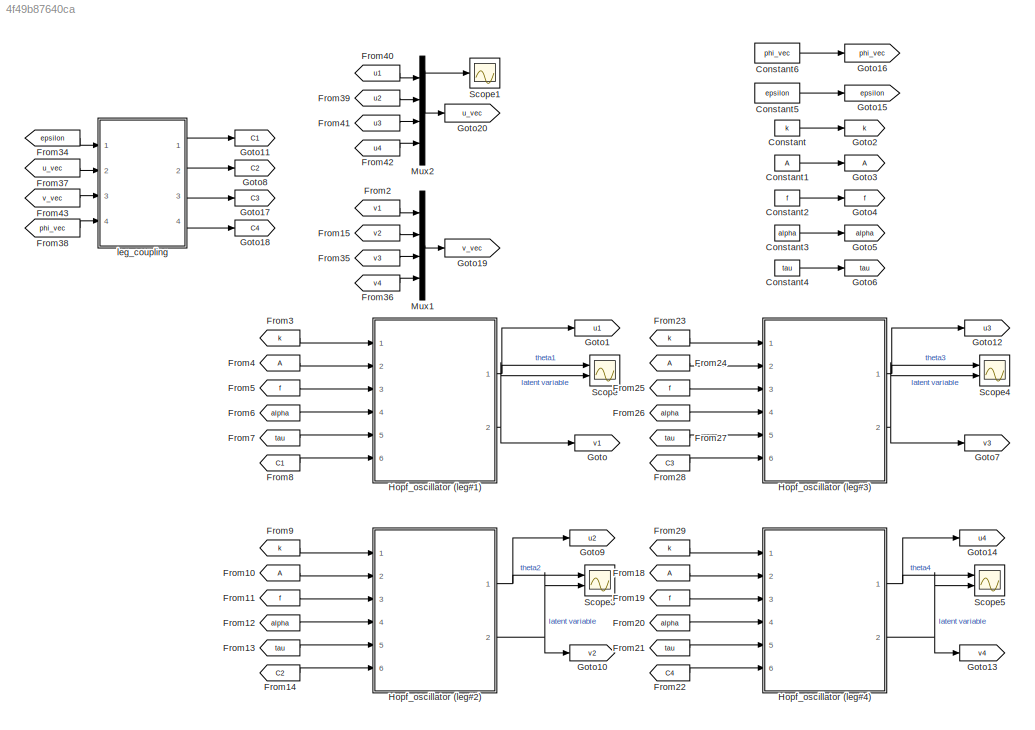
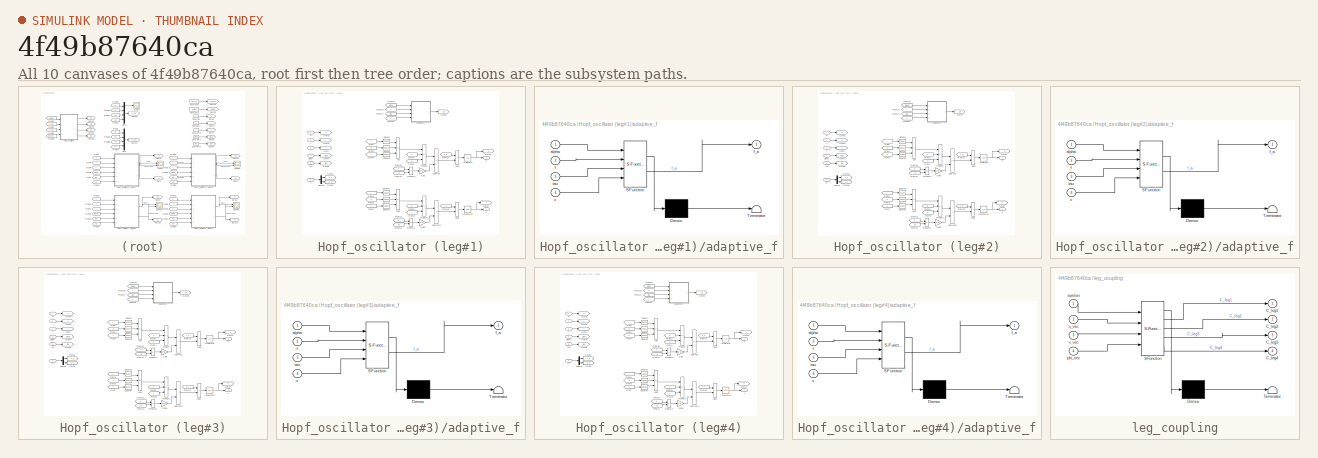
[diagram: thumbnail index - all 10 canvases of the model, root first then tree order]
MODEL slx_4f49b87640ca
KIND model
CONFIG AbsTol = auto
CONFIG EnableMultiTasking = off
CONFIG FixedStep = auto
CONFIG MaxStep = auto
CONFIG MinStep = auto
CONFIG RelTol = 1e-6
CONFIG SampleTimeConstraint = Unconstrained
CONFIG SolverName = ode23
CONFIG StartTime = 0.0
CONFIG StopTime = 10
BLOCK [Constant] Constant
  Value = k
BLOCK [Constant] Constant1
  Value = A
BLOCK [Constant] Constant2
  Value = f
BLOCK [Constant] Constant3
  Value = alpha
BLOCK [Constant] Constant4
  Value = tau
BLOCK [Constant] Constant5
  Value = epsilon
BLOCK [Constant] Constant6
  Value = phi_vec
BLOCK [From] From10
BLOCK [From] From11
  GotoTag = f
BLOCK [From] From12
  GotoTag = alpha
BLOCK [From] From13
  GotoTag = tau
BLOCK [From] From14
  GotoTag = C2
BLOCK [From] From15
  GotoTag = v2
BLOCK [From] From18
BLOCK [From] From19
  GotoTag = f
BLOCK [From] From2
  GotoTag = v1
BLOCK [From] From20
  GotoTag = alpha
BLOCK [From] From21
  GotoTag = tau
BLOCK [From] From22
  GotoTag = C4
BLOCK [From] From23
  GotoTag = k
BLOCK [From] From24
BLOCK [From] From25
  GotoTag = f
BLOCK [From] From26
  GotoTag = alpha
BLOCK [From] From27
  GotoTag = tau
BLOCK [From] From28
  GotoTag = C3
BLOCK [From] From29
  GotoTag = k
BLOCK [From] From3
  GotoTag = k
BLOCK [From] From34
  GotoTag = epsilon
BLOCK [From] From35
  GotoTag = v3
BLOCK [From] From36
  GotoTag = v4
BLOCK [From] From37
  GotoTag = u_vec
BLOCK [From] From38
  GotoTag = phi_vec
BLOCK [From] From39
  GotoTag = u2
BLOCK [From] From4
BLOCK [From] From40
  GotoTag = u1
BLOCK [From] From41
  GotoTag = u3
BLOCK [From] From42
  GotoTag = u4
BLOCK [From] From43
  GotoTag = v_vec
BLOCK [From] From5
  GotoTag = f
BLOCK [From] From6
  GotoTag = alpha
BLOCK [From] From7
  GotoTag = tau
BLOCK [From] From8
  GotoTag = C1
BLOCK [From] From9
  GotoTag = k
BLOCK [Goto] Goto
  GotoTag = v1
BLOCK [Goto] Goto1
  GotoTag = u1
BLOCK [Goto] Goto10
  GotoTag = v2
BLOCK [Goto] Goto11
  GotoTag = C1
BLOCK [Goto] Goto12
  GotoTag = u3
BLOCK [Goto] Goto13
  GotoTag = v4
BLOCK [Goto] Goto14
  GotoTag = u4
BLOCK [Goto] Goto15
  GotoTag = epsilon
BLOCK [Goto] Goto16
  GotoTag = phi_vec
BLOCK [Goto] Goto17
  GotoTag = C3
BLOCK [Goto] Goto18
  GotoTag = C4
BLOCK [Goto] Goto19
  GotoTag = v_vec
BLOCK [Goto] Goto2
  GotoTag = k
BLOCK [Goto] Goto20
  GotoTag = u_vec
BLOCK [Goto] Goto3
BLOCK [Goto] Goto4
  GotoTag = f
BLOCK [Goto] Goto5
  GotoTag = alpha
BLOCK [Goto] Goto6
  GotoTag = tau
BLOCK [Goto] Goto7
  GotoTag = v3
BLOCK [Goto] Goto8
  GotoTag = C2
BLOCK [Goto] Goto9
  GotoTag = u2
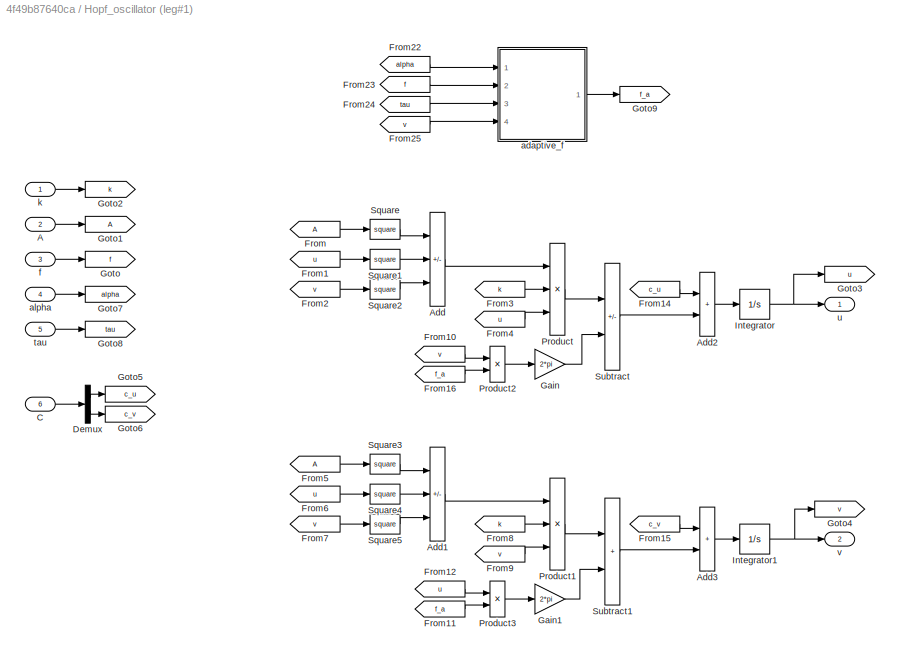
BLOCK [SubSystem] Hopf_oscillator (leg#1)
  Ports = [6, 2]
  RequestExecContextInheritance = off
BLOCK [Inport] Hopf_oscillator (leg#1)/A
  Port = 2
BLOCK [Sum] Hopf_oscillator (leg#1)/Add
  IconShape = rectangular
  Inputs = +--
  Ports = [3, 1]
BLOCK [Sum] Hopf_oscillator (leg#1)/Add1
  IconShape = rectangular
  Inputs = +--
  Ports = [3, 1]
BLOCK [Sum] Hopf_oscillator (leg#1)/Add2
  IconShape = rectangular
  Ports = [2, 1]
BLOCK [Sum] Hopf_oscillator (leg#1)/Add3
  IconShape = rectangular
  Ports = [2, 1]
BLOCK [Inport] Hopf_oscillator (leg#1)/C
  Port = 6
BLOCK [Demux] Hopf_oscillator (leg#1)/Demux
  Outputs = 2
  Ports = [1, 2]
BLOCK [From] Hopf_oscillator (leg#1)/From
BLOCK [From] Hopf_oscillator (leg#1)/From1
  GotoTag = u
BLOCK [From] Hopf_oscillator (leg#1)/From10
  GotoTag = v
BLOCK [From] Hopf_oscillator (leg#1)/From11
  GotoTag = f_a
BLOCK [From] Hopf_oscillator (leg#1)/From12
  GotoTag = u
BLOCK [From] Hopf_oscillator (leg#1)/From14
  GotoTag = c_u
BLOCK [From] Hopf_oscillator (leg#1)/From15
  GotoTag = c_v
BLOCK [From] Hopf_oscillator (leg#1)/From16
  GotoTag = f_a
BLOCK [From] Hopf_oscillator (leg#1)/From2
  GotoTag = v
BLOCK [From] Hopf_oscillator (leg#1)/From22
  GotoTag = alpha
BLOCK [From] Hopf_oscillator (leg#1)/From23
  GotoTag = f
BLOCK [From] Hopf_oscillator (leg#1)/From24
  GotoTag = tau
BLOCK [From] Hopf_oscillator (leg#1)/From25
  GotoTag = v
BLOCK [From] Hopf_oscillator (leg#1)/From3
  GotoTag = k
BLOCK [From] Hopf_oscillator (leg#1)/From4
  GotoTag = u
BLOCK [From] Hopf_oscillator (leg#1)/From5
BLOCK [From] Hopf_oscillator (leg#1)/From6
  GotoTag = u
BLOCK [From] Hopf_oscillator (leg#1)/From7
  GotoTag = v
BLOCK [From] Hopf_oscillator (leg#1)/From8
  GotoTag = k
BLOCK [From] Hopf_oscillator (leg#1)/From9
  GotoTag = v
BLOCK [Gain] Hopf_oscillator (leg#1)/Gain
  Gain = 2*pi
BLOCK [Gain] Hopf_oscillator (leg#1)/Gain1
  Gain = 2*pi
BLOCK [Goto] Hopf_oscillator (leg#1)/Goto
  GotoTag = f
BLOCK [Goto] Hopf_oscillator (leg#1)/Goto1
BLOCK [Goto] Hopf_oscillator (leg#1)/Goto2
  GotoTag = k
BLOCK [Goto] Hopf_oscillator (leg#1)/Goto3
  GotoTag = u
BLOCK [Goto] Hopf_oscillator (leg#1)/Goto4
  GotoTag = v
BLOCK [Goto] Hopf_oscillator (leg#1)/Goto5
  GotoTag = c_u
BLOCK [Goto] Hopf_oscillator (leg#1)/Goto6
  GotoTag = c_v
BLOCK [Goto] Hopf_oscillator (leg#1)/Goto7
  GotoTag = alpha
BLOCK [Goto] Hopf_oscillator (leg#1)/Goto8
  GotoTag = tau
BLOCK [Goto] Hopf_oscillator (leg#1)/Goto9
  GotoTag = f_a
BLOCK [Integrator] Hopf_oscillator (leg#1)/Integrator
  InitialCondition = init_state(1)
  Ports = [1, 1]
BLOCK [Integrator] Hopf_oscillator (leg#1)/Integrator1
  InitialCondition = init_state(2)
  Ports = [1, 1]
BLOCK [Product] Hopf_oscillator (leg#1)/Product
  Inputs = 3
  Ports = [3, 1]
BLOCK [Product] Hopf_oscillator (leg#1)/Product1
  Inputs = 3
  Ports = [3, 1]
BLOCK [Product] Hopf_oscillator (leg#1)/Product2
  Ports = [2, 1]
BLOCK [Product] Hopf_oscillator (leg#1)/Product3
  Ports = [2, 1]
BLOCK [Math] Hopf_oscillator (leg#1)/Square
  Operator = square
  Ports = [1, 1]
BLOCK [Math] Hopf_oscillator (leg#1)/Square1
  Operator = square
  Ports = [1, 1]
BLOCK [Math] Hopf_oscillator (leg#1)/Square2
  Operator = square
  Ports = [1, 1]
BLOCK [Math] Hopf_oscillator (leg#1)/Square3
  Operator = square
  Ports = [1, 1]
BLOCK [Math] Hopf_oscillator (leg#1)/Square4
  Operator = square
  Ports = [1, 1]
BLOCK [Math] Hopf_oscillator (leg#1)/Square5
  Operator = square
  Ports = [1, 1]
BLOCK [Sum] Hopf_oscillator (leg#1)/Subtract
  IconShape = rectangular
  Inputs = +-
  Ports = [2, 1]
BLOCK [Sum] Hopf_oscillator (leg#1)/Subtract1
  IconShape = rectangular
  Ports = [2, 1]
BLOCK [SubSystem] Hopf_oscillator (leg#1)/adaptive_f
  ErrorFcn = Stateflow.Translate.translate
  PermitHierarchicalResolution = ExplicitOnly
  Ports = [4, 1]
  RequestExecContextInheritance = off
  SFBlockType = MATLAB Function
  TreatAsAtomicUnit = on
BLOCK [Demux] Hopf_oscillator (leg#1)/adaptive_f/ Demux 
  Outputs = 1
  Ports = [1, 1]
BLOCK [S-Function] Hopf_oscillator (leg#1)/adaptive_f/ SFunction 
  EnableBusSupport = on
  FunctionName = sf_sfun
  PortCounts = [4 2]
  Ports = [4, 2]
  SFcnIsStateOwnerBlock = off
  SFunctionDeploymentMode = off
  Tag = Stateflow S-Function 2
BLOCK [Terminator] Hopf_oscillator (leg#1)/adaptive_f/ Terminator 
BLOCK [Inport] Hopf_oscillator (leg#1)/adaptive_f/alpha
BLOCK [Inport] Hopf_oscillator (leg#1)/adaptive_f/f
  Port = 2
BLOCK [Outport] Hopf_oscillator (leg#1)/adaptive_f/f_a
BLOCK [Inport] Hopf_oscillator (leg#1)/adaptive_f/tau
  Port = 3
BLOCK [Inport] Hopf_oscillator (leg#1)/adaptive_f/v
  Port = 4
BLOCK [Inport] Hopf_oscillator (leg#1)/alpha
  Port = 4
BLOCK [Inport] Hopf_oscillator (leg#1)/f
  Port = 3
BLOCK [Inport] Hopf_oscillator (leg#1)/k
BLOCK [Inport] Hopf_oscillator (leg#1)/tau
  Port = 5
BLOCK [Outport] Hopf_oscillator (leg#1)/u
BLOCK [Outport] Hopf_oscillator (leg#1)/v
  Port = 2
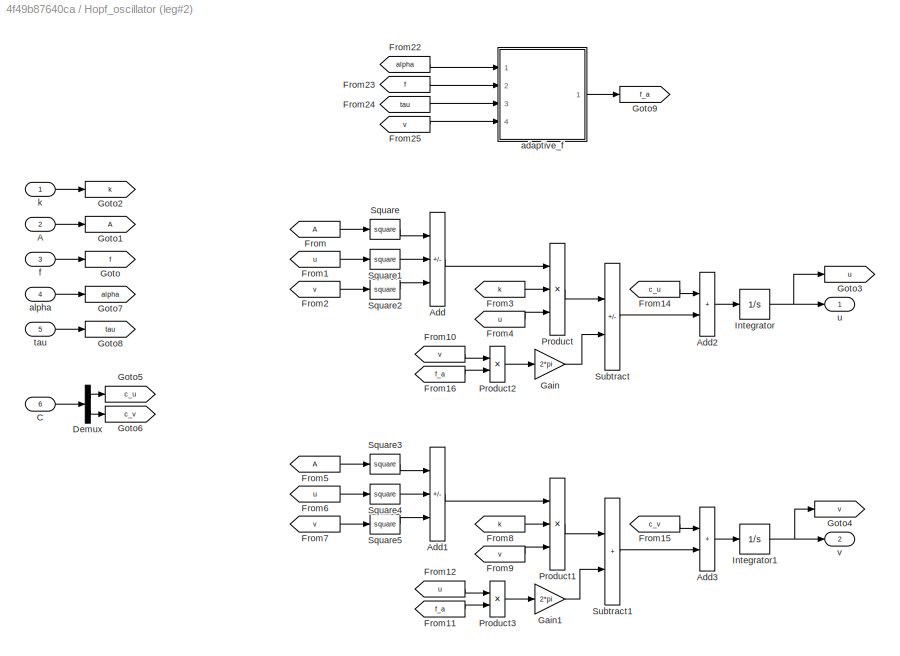
BLOCK [SubSystem] Hopf_oscillator (leg#2)
  Ports = [6, 2]
  RequestExecContextInheritance = off
BLOCK [Inport] Hopf_oscillator (leg#2)/A
  Port = 2
BLOCK [Sum] Hopf_oscillator (leg#2)/Add
  IconShape = rectangular
  Inputs = +--
  Ports = [3, 1]
BLOCK [Sum] Hopf_oscillator (leg#2)/Add1
  IconShape = rectangular
  Inputs = +--
  Ports = [3, 1]
BLOCK [Sum] Hopf_oscillator (leg#2)/Add2
  IconShape = rectangular
  Ports = [2, 1]
BLOCK [Sum] Hopf_oscillator (leg#2)/Add3
  IconShape = rectangular
  Ports = [2, 1]
BLOCK [Inport] Hopf_oscillator (leg#2)/C
  Port = 6
BLOCK [Demux] Hopf_oscillator (leg#2)/Demux
  Outputs = 2
  Ports = [1, 2]
BLOCK [From] Hopf_oscillator (leg#2)/From
BLOCK [From] Hopf_oscillator (leg#2)/From1
  GotoTag = u
BLOCK [From] Hopf_oscillator (leg#2)/From10
  GotoTag = v
BLOCK [From] Hopf_oscillator (leg#2)/From11
  GotoTag = f_a
BLOCK [From] Hopf_oscillator (leg#2)/From12
  GotoTag = u
BLOCK [From] Hopf_oscillator (leg#2)/From14
  GotoTag = c_u
BLOCK [From] Hopf_oscillator (leg#2)/From15
  GotoTag = c_v
BLOCK [From] Hopf_oscillator (leg#2)/From16
  GotoTag = f_a
BLOCK [From] Hopf_oscillator (leg#2)/From2
  GotoTag = v
BLOCK [From] Hopf_oscillator (leg#2)/From22
  GotoTag = alpha
BLOCK [From] Hopf_oscillator (leg#2)/From23
  GotoTag = f
BLOCK [From] Hopf_oscillator (leg#2)/From24
  GotoTag = tau
BLOCK [From] Hopf_oscillator (leg#2)/From25
  GotoTag = v
BLOCK [From] Hopf_oscillator (leg#2)/From3
  GotoTag = k
BLOCK [From] Hopf_oscillator (leg#2)/From4
  GotoTag = u
BLOCK [From] Hopf_oscillator (leg#2)/From5
BLOCK [From] Hopf_oscillator (leg#2)/From6
  GotoTag = u
BLOCK [From] Hopf_oscillator (leg#2)/From7
  GotoTag = v
BLOCK [From] Hopf_oscillator (leg#2)/From8
  GotoTag = k
BLOCK [From] Hopf_oscillator (leg#2)/From9
  GotoTag = v
BLOCK [Gain] Hopf_oscillator (leg#2)/Gain
  Gain = 2*pi
BLOCK [Gain] Hopf_oscillator (leg#2)/Gain1
  Gain = 2*pi
BLOCK [Goto] Hopf_oscillator (leg#2)/Goto
  GotoTag = f
BLOCK [Goto] Hopf_oscillator (leg#2)/Goto1
BLOCK [Goto] Hopf_oscillator (leg#2)/Goto2
  GotoTag = k
BLOCK [Goto] Hopf_oscillator (leg#2)/Goto3
  GotoTag = u
BLOCK [Goto] Hopf_oscillator (leg#2)/Goto4
  GotoTag = v
BLOCK [Goto] Hopf_oscillator (leg#2)/Goto5
  GotoTag = c_u
BLOCK [Goto] Hopf_oscillator (leg#2)/Goto6
  GotoTag = c_v
BLOCK [Goto] Hopf_oscillator (leg#2)/Goto7
  GotoTag = alpha
BLOCK [Goto] Hopf_oscillator (leg#2)/Goto8
  GotoTag = tau
BLOCK [Goto] Hopf_oscillator (leg#2)/Goto9
  GotoTag = f_a
BLOCK [Integrator] Hopf_oscillator (leg#2)/Integrator
  InitialCondition = init_state(3)
  Ports = [1, 1]
BLOCK [Integrator] Hopf_oscillator (leg#2)/Integrator1
  InitialCondition = init_state(4)
  Ports = [1, 1]
BLOCK [Product] Hopf_oscillator (leg#2)/Product
  Inputs = 3
  Ports = [3, 1]
BLOCK [Product] Hopf_oscillator (leg#2)/Product1
  Inputs = 3
  Ports = [3, 1]
BLOCK [Product] Hopf_oscillator (leg#2)/Product2
  Ports = [2, 1]
BLOCK [Product] Hopf_oscillator (leg#2)/Product3
  Ports = [2, 1]
BLOCK [Math] Hopf_oscillator (leg#2)/Square
  Operator = square
  Ports = [1, 1]
BLOCK [Math] Hopf_oscillator (leg#2)/Square1
  Operator = square
  Ports = [1, 1]
BLOCK [Math] Hopf_oscillator (leg#2)/Square2
  Operator = square
  Ports = [1, 1]
BLOCK [Math] Hopf_oscillator (leg#2)/Square3
  Operator = square
  Ports = [1, 1]
BLOCK [Math] Hopf_oscillator (leg#2)/Square4
  Operator = square
  Ports = [1, 1]
BLOCK [Math] Hopf_oscillator (leg#2)/Square5
  Operator = square
  Ports = [1, 1]
BLOCK [Sum] Hopf_oscillator (leg#2)/Subtract
  IconShape = rectangular
  Inputs = +-
  Ports = [2, 1]
BLOCK [Sum] Hopf_oscillator (leg#2)/Subtract1
  IconShape = rectangular
  Ports = [2, 1]
BLOCK [SubSystem] Hopf_oscillator (leg#2)/adaptive_f
  ErrorFcn = Stateflow.Translate.translate
  PermitHierarchicalResolution = ExplicitOnly
  Ports = [4, 1]
  RequestExecContextInheritance = off
  SFBlockType = MATLAB Function
  TreatAsAtomicUnit = on
BLOCK [Demux] Hopf_oscillator (leg#2)/adaptive_f/ Demux 
  Outputs = 1
  Ports = [1, 1]
BLOCK [S-Function] Hopf_oscillator (leg#2)/adaptive_f/ SFunction 
  EnableBusSupport = on
  FunctionName = sf_sfun
  PortCounts = [4 2]
  Ports = [4, 2]
  SFcnIsStateOwnerBlock = off
  SFunctionDeploymentMode = off
  Tag = Stateflow S-Function 1
BLOCK [Terminator] Hopf_oscillator (leg#2)/adaptive_f/ Terminator 
BLOCK [Inport] Hopf_oscillator (leg#2)/adaptive_f/alpha
BLOCK [Inport] Hopf_oscillator (leg#2)/adaptive_f/f
  Port = 2
BLOCK [Outport] Hopf_oscillator (leg#2)/adaptive_f/f_a
BLOCK [Inport] Hopf_oscillator (leg#2)/adaptive_f/tau
  Port = 3
BLOCK [Inport] Hopf_oscillator (leg#2)/adaptive_f/v
  Port = 4
BLOCK [Inport] Hopf_oscillator (leg#2)/alpha
  Port = 4
BLOCK [Inport] Hopf_oscillator (leg#2)/f
  Port = 3
BLOCK [Inport] Hopf_oscillator (leg#2)/k
BLOCK [Inport] Hopf_oscillator (leg#2)/tau
  Port = 5
BLOCK [Outport] Hopf_oscillator (leg#2)/u
BLOCK [Outport] Hopf_oscillator (leg#2)/v
  Port = 2
BLOCK [SubSystem] Hopf_oscillator (leg#3)
  Ports = [6, 2]
  RequestExecContextInheritance = off
BLOCK [Inport] Hopf_oscillator (leg#3)/A
  Port = 2
BLOCK [Sum] Hopf_oscillator (leg#3)/Add
  IconShape = rectangular
  Inputs = +--
  Ports = [3, 1]
BLOCK [Sum] Hopf_oscillator (leg#3)/Add1
  IconShape = rectangular
  Inputs = +--
  Ports = [3, 1]
BLOCK [Sum] Hopf_oscillator (leg#3)/Add2
  IconShape = rectangular
  Ports = [2, 1]
BLOCK [Sum] Hopf_oscillator (leg#3)/Add3
  IconShape = rectangular
  Ports = [2, 1]
BLOCK [Inport] Hopf_oscillator (leg#3)/C
  Port = 6
BLOCK [Demux] Hopf_oscillator (leg#3)/Demux
  Outputs = 2
  Ports = [1, 2]
BLOCK [From] Hopf_oscillator (leg#3)/From
BLOCK [From] Hopf_oscillator (leg#3)/From1
  GotoTag = u
BLOCK [From] Hopf_oscillator (leg#3)/From10
  GotoTag = v
BLOCK [From] Hopf_oscillator (leg#3)/From11
  GotoTag = f_a
BLOCK [From] Hopf_oscillator (leg#3)/From12
  GotoTag = u
BLOCK [From] Hopf_oscillator (leg#3)/From14
  GotoTag = c_u
BLOCK [From] Hopf_oscillator (leg#3)/From15
  GotoTag = c_v
BLOCK [From] Hopf_oscillator (leg#3)/From16
  GotoTag = f_a
BLOCK [From] Hopf_oscillator (leg#3)/From2
  GotoTag = v
BLOCK [From] Hopf_oscillator (leg#3)/From22
  GotoTag = alpha
BLOCK [From] Hopf_oscillator (leg#3)/From23
  GotoTag = f
BLOCK [From] Hopf_oscillator (leg#3)/From24
  GotoTag = tau
BLOCK [From] Hopf_oscillator (leg#3)/From25
  GotoTag = v
BLOCK [From] Hopf_oscillator (leg#3)/From3
  GotoTag = k
BLOCK [From] Hopf_oscillator (leg#3)/From4
  GotoTag = u
BLOCK [From] Hopf_oscillator (leg#3)/From5
BLOCK [From] Hopf_oscillator (leg#3)/From6
  GotoTag = u
BLOCK [From] Hopf_oscillator (leg#3)/From7
  GotoTag = v
BLOCK [From] Hopf_oscillator (leg#3)/From8
  GotoTag = k
BLOCK [From] Hopf_oscillator (leg#3)/From9
  GotoTag = v
BLOCK [Gain] Hopf_oscillator (leg#3)/Gain
  Gain = 2*pi
BLOCK [Gain] Hopf_oscillator (leg#3)/Gain1
  Gain = 2*pi
BLOCK [Goto] Hopf_oscillator (leg#3)/Goto
  GotoTag = f
BLOCK [Goto] Hopf_oscillator (leg#3)/Goto1
BLOCK [Goto] Hopf_oscillator (leg#3)/Goto2
  GotoTag = k
BLOCK [Goto] Hopf_oscillator (leg#3)/Goto3
  GotoTag = u
BLOCK [Goto] Hopf_oscillator (leg#3)/Goto4
  GotoTag = v
BLOCK [Goto] Hopf_oscillator (leg#3)/Goto5
  GotoTag = c_u
BLOCK [Goto] Hopf_oscillator (leg#3)/Goto6
  GotoTag = c_v
BLOCK [Goto] Hopf_oscillator (leg#3)/Goto7
  GotoTag = alpha
BLOCK [Goto] Hopf_oscillator (leg#3)/Goto8
  GotoTag = tau
BLOCK [Goto] Hopf_oscillator (leg#3)/Goto9
  GotoTag = f_a
BLOCK [Integrator] Hopf_oscillator (leg#3)/Integrator
  InitialCondition = init_state(5)
  Ports = [1, 1]
BLOCK [Integrator] Hopf_oscillator (leg#3)/Integrator1
  InitialCondition = init_state(6)
  Ports = [1, 1]
BLOCK [Product] Hopf_oscillator (leg#3)/Product
  Inputs = 3
  Ports = [3, 1]
BLOCK [Product] Hopf_oscillator (leg#3)/Product1
  Inputs = 3
  Ports = [3, 1]
BLOCK [Product] Hopf_oscillator (leg#3)/Product2
  Ports = [2, 1]
BLOCK [Product] Hopf_oscillator (leg#3)/Product3
  Ports = [2, 1]
BLOCK [Math] Hopf_oscillator (leg#3)/Square
  Operator = square
  Ports = [1, 1]
BLOCK [Math] Hopf_oscillator (leg#3)/Square1
  Operator = square
  Ports = [1, 1]
BLOCK [Math] Hopf_oscillator (leg#3)/Square2
  Operator = square
  Ports = [1, 1]
BLOCK [Math] Hopf_oscillator (leg#3)/Square3
  Operator = square
  Ports = [1, 1]
BLOCK [Math] Hopf_oscillator (leg#3)/Square4
  Operator = square
  Ports = [1, 1]
BLOCK [Math] Hopf_oscillator (leg#3)/Square5
  Operator = square
  Ports = [1, 1]
BLOCK [Sum] Hopf_oscillator (leg#3)/Subtract
  IconShape = rectangular
  Inputs = +-
  Ports = [2, 1]
BLOCK [Sum] Hopf_oscillator (leg#3)/Subtract1
  IconShape = rectangular
  Ports = [2, 1]
BLOCK [SubSystem] Hopf_oscillator (leg#3)/adaptive_f
  ErrorFcn = Stateflow.Translate.translate
  PermitHierarchicalResolution = ExplicitOnly
  Ports = [4, 1]
  RequestExecContextInheritance = off
  SFBlockType = MATLAB Function
  TreatAsAtomicUnit = on
BLOCK [Demux] Hopf_oscillator (leg#3)/adaptive_f/ Demux 
  Outputs = 1
  Ports = [1, 1]
BLOCK [S-Function] Hopf_oscillator (leg#3)/adaptive_f/ SFunction 
  EnableBusSupport = on
  FunctionName = sf_sfun
  PortCounts = [4 2]
  Ports = [4, 2]
  SFcnIsStateOwnerBlock = off
  SFunctionDeploymentMode = off
  Tag = Stateflow S-Function 5
BLOCK [Terminator] Hopf_oscillator (leg#3)/adaptive_f/ Terminator 
BLOCK [Inport] Hopf_oscillator (leg#3)/adaptive_f/alpha
BLOCK [Inport] Hopf_oscillator (leg#3)/adaptive_f/f
  Port = 2
BLOCK [Outport] Hopf_oscillator (leg#3)/adaptive_f/f_a
BLOCK [Inport] Hopf_oscillator (leg#3)/adaptive_f/tau
  Port = 3
BLOCK [Inport] Hopf_oscillator (leg#3)/adaptive_f/v
  Port = 4
BLOCK [Inport] Hopf_oscillator (leg#3)/alpha
  Port = 4
BLOCK [Inport] Hopf_oscillator (leg#3)/f
  Port = 3
BLOCK [Inport] Hopf_oscillator (leg#3)/k
BLOCK [Inport] Hopf_oscillator (leg#3)/tau
  Port = 5
BLOCK [Outport] Hopf_oscillator (leg#3)/u
BLOCK [Outport] Hopf_oscillator (leg#3)/v
  Port = 2
BLOCK [SubSystem] Hopf_oscillator (leg#4)
  Ports = [6, 2]
  RequestExecContextInheritance = off
BLOCK [Inport] Hopf_oscillator (leg#4)/A
  Port = 2
BLOCK [Sum] Hopf_oscillator (leg#4)/Add
  IconShape = rectangular
  Inputs = +--
  Ports = [3, 1]
BLOCK [Sum] Hopf_oscillator (leg#4)/Add1
  IconShape = rectangular
  Inputs = +--
  Ports = [3, 1]
BLOCK [Sum] Hopf_oscillator (leg#4)/Add2
  IconShape = rectangular
  Ports = [2, 1]
BLOCK [Sum] Hopf_oscillator (leg#4)/Add3
  IconShape = rectangular
  Ports = [2, 1]
BLOCK [Inport] Hopf_oscillator (leg#4)/C
  Port = 6
BLOCK [Demux] Hopf_oscillator (leg#4)/Demux
  Outputs = 2
  Ports = [1, 2]
BLOCK [From] Hopf_oscillator (leg#4)/From
BLOCK [From] Hopf_oscillator (leg#4)/From1
  GotoTag = u
BLOCK [From] Hopf_oscillator (leg#4)/From10
  GotoTag = v
BLOCK [From] Hopf_oscillator (leg#4)/From11
  GotoTag = f_a
BLOCK [From] Hopf_oscillator (leg#4)/From12
  GotoTag = u
BLOCK [From] Hopf_oscillator (leg#4)/From14
  GotoTag = c_u
BLOCK [From] Hopf_oscillator (leg#4)/From15
  GotoTag = c_v
BLOCK [From] Hopf_oscillator (leg#4)/From16
  GotoTag = f_a
BLOCK [From] Hopf_oscillator (leg#4)/From2
  GotoTag = v
BLOCK [From] Hopf_oscillator (leg#4)/From22
  GotoTag = alpha
BLOCK [From] Hopf_oscillator (leg#4)/From23
  GotoTag = f
BLOCK [From] Hopf_oscillator (leg#4)/From24
  GotoTag = tau
BLOCK [From] Hopf_oscillator (leg#4)/From25
  GotoTag = v
BLOCK [From] Hopf_oscillator (leg#4)/From3
  GotoTag = k
BLOCK [From] Hopf_oscillator (leg#4)/From4
  GotoTag = u
BLOCK [From] Hopf_oscillator (leg#4)/From5
BLOCK [From] Hopf_oscillator (leg#4)/From6
  GotoTag = u
BLOCK [From] Hopf_oscillator (leg#4)/From7
  GotoTag = v
BLOCK [From] Hopf_oscillator (leg#4)/From8
  GotoTag = k
BLOCK [From] Hopf_oscillator (leg#4)/From9
  GotoTag = v
BLOCK [Gain] Hopf_oscillator (leg#4)/Gain
  Gain = 2*pi
BLOCK [Gain] Hopf_oscillator (leg#4)/Gain1
  Gain = 2*pi
BLOCK [Goto] Hopf_oscillator (leg#4)/Goto
  GotoTag = f
BLOCK [Goto] Hopf_oscillator (leg#4)/Goto1
BLOCK [Goto] Hopf_oscillator (leg#4)/Goto2
  GotoTag = k
BLOCK [Goto] Hopf_oscillator (leg#4)/Goto3
  GotoTag = u
BLOCK [Goto] Hopf_oscillator (leg#4)/Goto4
  GotoTag = v
BLOCK [Goto] Hopf_oscillator (leg#4)/Goto5
  GotoTag = c_u
BLOCK [Goto] Hopf_oscillator (leg#4)/Goto6
  GotoTag = c_v
BLOCK [Goto] Hopf_oscillator (leg#4)/Goto7
  GotoTag = alpha
BLOCK [Goto] Hopf_oscillator (leg#4)/Goto8
  GotoTag = tau
BLOCK [Goto] Hopf_oscillator (leg#4)/Goto9
  GotoTag = f_a
BLOCK [Integrator] Hopf_oscillator (leg#4)/Integrator
  InitialCondition = init_state(7)
  Ports = [1, 1]
BLOCK [Integrator] Hopf_oscillator (leg#4)/Integrator1
  InitialCondition = init_state(8)
  Ports = [1, 1]
BLOCK [Product] Hopf_oscillator (leg#4)/Product
  Inputs = 3
  Ports = [3, 1]
BLOCK [Product] Hopf_oscillator (leg#4)/Product1
  Inputs = 3
  Ports = [3, 1]
BLOCK [Product] Hopf_oscillator (leg#4)/Product2
  Ports = [2, 1]
BLOCK [Product] Hopf_oscillator (leg#4)/Product3
  Ports = [2, 1]
BLOCK [Math] Hopf_oscillator (leg#4)/Square
  Operator = square
  Ports = [1, 1]
BLOCK [Math] Hopf_oscillator (leg#4)/Square1
  Operator = square
  Ports = [1, 1]
BLOCK [Math] Hopf_oscillator (leg#4)/Square2
  Operator = square
  Ports = [1, 1]
BLOCK [Math] Hopf_oscillator (leg#4)/Square3
  Operator = square
  Ports = [1, 1]
BLOCK [Math] Hopf_oscillator (leg#4)/Square4
  Operator = square
  Ports = [1, 1]
BLOCK [Math] Hopf_oscillator (leg#4)/Square5
  Operator = square
  Ports = [1, 1]
BLOCK [Sum] Hopf_oscillator (leg#4)/Subtract
  IconShape = rectangular
  Inputs = +-
  Ports = [2, 1]
BLOCK [Sum] Hopf_oscillator (leg#4)/Subtract1
  IconShape = rectangular
  Ports = [2, 1]
BLOCK [SubSystem] Hopf_oscillator (leg#4)/adaptive_f
  ErrorFcn = Stateflow.Translate.translate
  PermitHierarchicalResolution = ExplicitOnly
  Ports = [4, 1]
  RequestExecContextInheritance = off
  SFBlockType = MATLAB Function
  TreatAsAtomicUnit = on
BLOCK [Demux] Hopf_oscillator (leg#4)/adaptive_f/ Demux 
  Outputs = 1
  Ports = [1, 1]
BLOCK [S-Function] Hopf_oscillator (leg#4)/adaptive_f/ SFunction 
  EnableBusSupport = on
  FunctionName = sf_sfun
  PortCounts = [4 2]
  Ports = [4, 2]
  SFcnIsStateOwnerBlock = off
  SFunctionDeploymentMode = off
  Tag = Stateflow S-Function 6
BLOCK [Terminator] Hopf_oscillator (leg#4)/adaptive_f/ Terminator 
BLOCK [Inport] Hopf_oscillator (leg#4)/adaptive_f/alpha
BLOCK [Inport] Hopf_oscillator (leg#4)/adaptive_f/f
  Port = 2
BLOCK [Outport] Hopf_oscillator (leg#4)/adaptive_f/f_a
BLOCK [Inport] Hopf_oscillator (leg#4)/adaptive_f/tau
  Port = 3
BLOCK [Inport] Hopf_oscillator (leg#4)/adaptive_f/v
  Port = 4
BLOCK [Inport] Hopf_oscillator (leg#4)/alpha
  Port = 4
BLOCK [Inport] Hopf_oscillator (leg#4)/f
  Port = 3
BLOCK [Inport] Hopf_oscillator (leg#4)/k
BLOCK [Inport] Hopf_oscillator (leg#4)/tau
  Port = 5
BLOCK [Outport] Hopf_oscillator (leg#4)/u
BLOCK [Outport] Hopf_oscillator (leg#4)/v
  Port = 2
BLOCK [Mux] Mux1
  DisplayOption = bar
  Ports = [4, 1]
BLOCK [Mux] Mux2
  DisplayOption = bar
  Ports = [4, 1]
BLOCK [Scope] Scope
  Floating = off
  NumInputPorts = 2
  Ports = [2]
  ScopeSpecificationString = Simulink.scopes.TimeScopeBlockCfg('CurrentConfiguration', extmgr.ConfigurationSet(extmgr.Configuration('Core','General UI',true),extmgr.Configuration('Core','Source UI',true),extmgr.Configuration('Sources','WiredSimulink',true),extmgr.Configuration('Visuals','Time Domain',true,'SerializedDisplays',{struct('MinYLimReal','-1.25','MaxYLimReal','1.25','YLabelReal','','MinYLimMag','0.00000','MaxYLimMag...<+1445ch>
BLOCK [Scope] Scope1
  Floating = off
  NumInputPorts = 1
  Ports = [1]
  ScopeSpecificationString = Simulink.scopes.TimeScopeBlockCfg('CurrentConfiguration', extmgr.ConfigurationSet(extmgr.Configuration('Core','General UI',true),extmgr.Configuration('Core','Source UI',true),extmgr.Configuration('Sources','WiredSimulink',true,'DataLoggingVariableName','ScopeData3'),extmgr.Configuration('Visuals','Time Domain',true,'SerializedDisplays',{struct('MinYLimReal','-1.21416','MaxYLimReal','1.25','YLabelR...<+1505ch>
BLOCK [Scope] Scope3
  Floating = off
  NumInputPorts = 2
  Ports = [2]
  ScopeSpecificationString = Simulink.scopes.TimeScopeBlockCfg('CurrentConfiguration', extmgr.ConfigurationSet(extmgr.Configuration('Core','General UI',true),extmgr.Configuration('Core','Source UI',true),extmgr.Configuration('Sources','WiredSimulink',true,'DataLoggingVariableName','ScopeData3'),extmgr.Configuration('Visuals','Time Domain',true,'SerializedDisplays',{struct('MinYLimReal','-1.25','MaxYLimReal','1.25','YLabelReal...<+1483ch>
BLOCK [Scope] Scope4
  Floating = off
  NumInputPorts = 2
  Ports = [2]
  ScopeSpecificationString = Simulink.scopes.TimeScopeBlockCfg('CurrentConfiguration', extmgr.ConfigurationSet(extmgr.Configuration('Core','General UI',true),extmgr.Configuration('Core','Source UI',true),extmgr.Configuration('Sources','WiredSimulink',true,'DataLoggingVariableName','ScopeData1'),extmgr.Configuration('Visuals','Time Domain',true,'SerializedDisplays',{struct('MinYLimReal','-1.25','MaxYLimReal','1.25','YLabelReal...<+1484ch>
BLOCK [Scope] Scope5
  Floating = off
  NumInputPorts = 2
  Ports = [2]
  ScopeSpecificationString = Simulink.scopes.TimeScopeBlockCfg('CurrentConfiguration', extmgr.ConfigurationSet(extmgr.Configuration('Core','General UI',true),extmgr.Configuration('Core','Source UI',true),extmgr.Configuration('Sources','WiredSimulink',true,'DataLoggingVariableName','ScopeData2'),extmgr.Configuration('Visuals','Time Domain',true,'SerializedDisplays',{struct('MinYLimReal','-1.25','MaxYLimReal','1.25','YLabelReal...<+1483ch>
BLOCK [SubSystem] leg_coupling
  ErrorFcn = Stateflow.Translate.translate
  PermitHierarchicalResolution = ExplicitOnly
  Ports = [4, 4]
  RequestExecContextInheritance = off
  SFBlockType = MATLAB Function
  TreatAsAtomicUnit = on
BLOCK [Demux] leg_coupling/ Demux 
  Outputs = 1
  Ports = [1, 1]
BLOCK [S-Function] leg_coupling/ SFunction 
  EnableBusSupport = on
  FunctionName = sf_sfun
  PortCounts = [4 5]
  Ports = [4, 5]
  SFcnIsStateOwnerBlock = off
  SFunctionDeploymentMode = off
  Tag = Stateflow S-Function 9
BLOCK [Terminator] leg_coupling/ Terminator 
BLOCK [Outport] leg_coupling/C_leg1
BLOCK [Outport] leg_coupling/C_leg2
  Port = 2
BLOCK [Outport] leg_coupling/C_leg3
  Port = 3
BLOCK [Outport] leg_coupling/C_leg4
  Port = 4
BLOCK [Inport] leg_coupling/epsilon
BLOCK [Inport] leg_coupling/phi_vec
  Port = 4
BLOCK [Inport] leg_coupling/u_vec
  Port = 2
BLOCK [Inport] leg_coupling/v_vec
  Port = 3
LINE Constant1:1 -> Goto3:1
LINE Constant2:1 -> Goto4:1
LINE Constant3:1 -> Goto5:1
LINE Constant4:1 -> Goto6:1
LINE Constant5:1 -> Goto15:1
LINE Constant6:1 -> Goto16:1
LINE Constant:1 -> Goto2:1
LINE From10:1 -> Hopf_oscillator (leg#2):2
LINE From11:1 -> Hopf_oscillator (leg#2):3
LINE From12:1 -> Hopf_oscillator (leg#2):4
LINE From13:1 -> Hopf_oscillator (leg#2):5
LINE From14:1 -> Hopf_oscillator (leg#2):6
LINE From15:1 -> Mux1:2
LINE From18:1 -> Hopf_oscillator (leg#4):2
LINE From19:1 -> Hopf_oscillator (leg#4):3
LINE From20:1 -> Hopf_oscillator (leg#4):4
LINE From21:1 -> Hopf_oscillator (leg#4):5
LINE From22:1 -> Hopf_oscillator (leg#4):6
LINE From23:1 -> Hopf_oscillator (leg#3):1
LINE From24:1 -> Hopf_oscillator (leg#3):2
LINE From25:1 -> Hopf_oscillator (leg#3):3
LINE From26:1 -> Hopf_oscillator (leg#3):4
LINE From27:1 -> Hopf_oscillator (leg#3):5
LINE From28:1 -> Hopf_oscillator (leg#3):6
LINE From29:1 -> Hopf_oscillator (leg#4):1
LINE From2:1 -> Mux1:1
LINE From34:1 -> leg_coupling:1
LINE From35:1 -> Mux1:3
LINE From36:1 -> Mux1:4
LINE From37:1 -> leg_coupling:2
LINE From38:1 -> leg_coupling:4
LINE From39:1 -> Mux2:2
LINE From3:1 -> Hopf_oscillator (leg#1):1
LINE From40:1 -> Mux2:1
LINE From41:1 -> Mux2:3
LINE From42:1 -> Mux2:4
LINE From43:1 -> leg_coupling:3
LINE From4:1 -> Hopf_oscillator (leg#1):2
LINE From5:1 -> Hopf_oscillator (leg#1):3
LINE From6:1 -> Hopf_oscillator (leg#1):4
LINE From7:1 -> Hopf_oscillator (leg#1):5
LINE From8:1 -> Hopf_oscillator (leg#1):6
LINE From9:1 -> Hopf_oscillator (leg#2):1
LINE Hopf_oscillator (leg#1)/A:1 -> Hopf_oscillator (leg#1)/Goto1:1
LINE Hopf_oscillator (leg#1)/Add1:1 -> Hopf_oscillator (leg#1)/Product1:1
LINE Hopf_oscillator (leg#1)/Add2:1 -> Hopf_oscillator (leg#1)/Integrator:1
LINE Hopf_oscillator (leg#1)/Add3:1 -> Hopf_oscillator (leg#1)/Integrator1:1
LINE Hopf_oscillator (leg#1)/Add:1 -> Hopf_oscillator (leg#1)/Product:1
LINE Hopf_oscillator (leg#1)/C:1 -> Hopf_oscillator (leg#1)/Demux:1
LINE Hopf_oscillator (leg#1)/Demux:1 -> Hopf_oscillator (leg#1)/Goto5:1
LINE Hopf_oscillator (leg#1)/Demux:2 -> Hopf_oscillator (leg#1)/Goto6:1
LINE Hopf_oscillator (leg#1)/From10:1 -> Hopf_oscillator (leg#1)/Product2:1
LINE Hopf_oscillator (leg#1)/From11:1 -> Hopf_oscillator (leg#1)/Product3:2
LINE Hopf_oscillator (leg#1)/From12:1 -> Hopf_oscillator (leg#1)/Product3:1
LINE Hopf_oscillator (leg#1)/From14:1 -> Hopf_oscillator (leg#1)/Add2:1
LINE Hopf_oscillator (leg#1)/From15:1 -> Hopf_oscillator (leg#1)/Add3:1
LINE Hopf_oscillator (leg#1)/From16:1 -> Hopf_oscillator (leg#1)/Product2:2
LINE Hopf_oscillator (leg#1)/From1:1 -> Hopf_oscillator (leg#1)/Square1:1
LINE Hopf_oscillator (leg#1)/From22:1 -> Hopf_oscillator (leg#1)/adaptive_f:1
LINE Hopf_oscillator (leg#1)/From23:1 -> Hopf_oscillator (leg#1)/adaptive_f:2
LINE Hopf_oscillator (leg#1)/From24:1 -> Hopf_oscillator (leg#1)/adaptive_f:3
LINE Hopf_oscillator (leg#1)/From25:1 -> Hopf_oscillator (leg#1)/adaptive_f:4
LINE Hopf_oscillator (leg#1)/From2:1 -> Hopf_oscillator (leg#1)/Square2:1
LINE Hopf_oscillator (leg#1)/From3:1 -> Hopf_oscillator (leg#1)/Product:2
LINE Hopf_oscillator (leg#1)/From4:1 -> Hopf_oscillator (leg#1)/Product:3
LINE Hopf_oscillator (leg#1)/From5:1 -> Hopf_oscillator (leg#1)/Square3:1
LINE Hopf_oscillator (leg#1)/From6:1 -> Hopf_oscillator (leg#1)/Square4:1
LINE Hopf_oscillator (leg#1)/From7:1 -> Hopf_oscillator (leg#1)/Square5:1
LINE Hopf_oscillator (leg#1)/From8:1 -> Hopf_oscillator (leg#1)/Product1:2
LINE Hopf_oscillator (leg#1)/From9:1 -> Hopf_oscillator (leg#1)/Product1:3
LINE Hopf_oscillator (leg#1)/From:1 -> Hopf_oscillator (leg#1)/Square:1
LINE Hopf_oscillator (leg#1)/Gain1:1 -> Hopf_oscillator (leg#1)/Subtract1:2
LINE Hopf_oscillator (leg#1)/Gain:1 -> Hopf_oscillator (leg#1)/Subtract:2
NET Hopf_oscillator (leg#1)/Integrator1:1 -> Hopf_oscillator (leg#1)/Goto4:1, Hopf_oscillator (leg#1)/v:1
NET Hopf_oscillator (leg#1)/Integrator:1 -> Hopf_oscillator (leg#1)/Goto3:1, Hopf_oscillator (leg#1)/u:1
LINE Hopf_oscillator (leg#1)/Product1:1 -> Hopf_oscillator (leg#1)/Subtract1:1
LINE Hopf_oscillator (leg#1)/Product2:1 -> Hopf_oscillator (leg#1)/Gain:1
LINE Hopf_oscillator (leg#1)/Product3:1 -> Hopf_oscillator (leg#1)/Gain1:1
LINE Hopf_oscillator (leg#1)/Product:1 -> Hopf_oscillator (leg#1)/Subtract:1
LINE Hopf_oscillator (leg#1)/Square1:1 -> Hopf_oscillator (leg#1)/Add:2
LINE Hopf_oscillator (leg#1)/Square2:1 -> Hopf_oscillator (leg#1)/Add:3
LINE Hopf_oscillator (leg#1)/Square3:1 -> Hopf_oscillator (leg#1)/Add1:1
LINE Hopf_oscillator (leg#1)/Square4:1 -> Hopf_oscillator (leg#1)/Add1:2
LINE Hopf_oscillator (leg#1)/Square5:1 -> Hopf_oscillator (leg#1)/Add1:3
LINE Hopf_oscillator (leg#1)/Square:1 -> Hopf_oscillator (leg#1)/Add:1
LINE Hopf_oscillator (leg#1)/Subtract1:1 -> Hopf_oscillator (leg#1)/Add3:2
LINE Hopf_oscillator (leg#1)/Subtract:1 -> Hopf_oscillator (leg#1)/Add2:2
LINE Hopf_oscillator (leg#1)/adaptive_f:1 -> Hopf_oscillator (leg#1)/Goto9:1
LINE Hopf_oscillator (leg#1)/alpha:1 -> Hopf_oscillator (leg#1)/Goto7:1
LINE Hopf_oscillator (leg#1)/f:1 -> Hopf_oscillator (leg#1)/Goto:1
LINE Hopf_oscillator (leg#1)/k:1 -> Hopf_oscillator (leg#1)/Goto2:1
LINE Hopf_oscillator (leg#1)/tau:1 -> Hopf_oscillator (leg#1)/Goto8:1
NET Hopf_oscillator (leg#1):1 -> Goto1:1, Scope:1
NET Hopf_oscillator (leg#1):2 -> Goto:1, Scope:2
LINE Hopf_oscillator (leg#2)/A:1 -> Hopf_oscillator (leg#2)/Goto1:1
LINE Hopf_oscillator (leg#2)/Add1:1 -> Hopf_oscillator (leg#2)/Product1:1
LINE Hopf_oscillator (leg#2)/Add2:1 -> Hopf_oscillator (leg#2)/Integrator:1
LINE Hopf_oscillator (leg#2)/Add3:1 -> Hopf_oscillator (leg#2)/Integrator1:1
LINE Hopf_oscillator (leg#2)/Add:1 -> Hopf_oscillator (leg#2)/Product:1
LINE Hopf_oscillator (leg#2)/C:1 -> Hopf_oscillator (leg#2)/Demux:1
LINE Hopf_oscillator (leg#2)/Demux:1 -> Hopf_oscillator (leg#2)/Goto5:1
LINE Hopf_oscillator (leg#2)/Demux:2 -> Hopf_oscillator (leg#2)/Goto6:1
LINE Hopf_oscillator (leg#2)/From10:1 -> Hopf_oscillator (leg#2)/Product2:1
LINE Hopf_oscillator (leg#2)/From11:1 -> Hopf_oscillator (leg#2)/Product3:2
LINE Hopf_oscillator (leg#2)/From12:1 -> Hopf_oscillator (leg#2)/Product3:1
LINE Hopf_oscillator (leg#2)/From14:1 -> Hopf_oscillator (leg#2)/Add2:1
LINE Hopf_oscillator (leg#2)/From15:1 -> Hopf_oscillator (leg#2)/Add3:1
LINE Hopf_oscillator (leg#2)/From16:1 -> Hopf_oscillator (leg#2)/Product2:2
LINE Hopf_oscillator (leg#2)/From1:1 -> Hopf_oscillator (leg#2)/Square1:1
LINE Hopf_oscillator (leg#2)/From22:1 -> Hopf_oscillator (leg#2)/adaptive_f:1
LINE Hopf_oscillator (leg#2)/From23:1 -> Hopf_oscillator (leg#2)/adaptive_f:2
LINE Hopf_oscillator (leg#2)/From24:1 -> Hopf_oscillator (leg#2)/adaptive_f:3
LINE Hopf_oscillator (leg#2)/From25:1 -> Hopf_oscillator (leg#2)/adaptive_f:4
LINE Hopf_oscillator (leg#2)/From2:1 -> Hopf_oscillator (leg#2)/Square2:1
LINE Hopf_oscillator (leg#2)/From3:1 -> Hopf_oscillator (leg#2)/Product:2
LINE Hopf_oscillator (leg#2)/From4:1 -> Hopf_oscillator (leg#2)/Product:3
LINE Hopf_oscillator (leg#2)/From5:1 -> Hopf_oscillator (leg#2)/Square3:1
LINE Hopf_oscillator (leg#2)/From6:1 -> Hopf_oscillator (leg#2)/Square4:1
LINE Hopf_oscillator (leg#2)/From7:1 -> Hopf_oscillator (leg#2)/Square5:1
LINE Hopf_oscillator (leg#2)/From8:1 -> Hopf_oscillator (leg#2)/Product1:2
LINE Hopf_oscillator (leg#2)/From9:1 -> Hopf_oscillator (leg#2)/Product1:3
LINE Hopf_oscillator (leg#2)/From:1 -> Hopf_oscillator (leg#2)/Square:1
LINE Hopf_oscillator (leg#2)/Gain1:1 -> Hopf_oscillator (leg#2)/Subtract1:2
LINE Hopf_oscillator (leg#2)/Gain:1 -> Hopf_oscillator (leg#2)/Subtract:2
NET Hopf_oscillator (leg#2)/Integrator1:1 -> Hopf_oscillator (leg#2)/Goto4:1, Hopf_oscillator (leg#2)/v:1
NET Hopf_oscillator (leg#2)/Integrator:1 -> Hopf_oscillator (leg#2)/Goto3:1, Hopf_oscillator (leg#2)/u:1
LINE Hopf_oscillator (leg#2)/Product1:1 -> Hopf_oscillator (leg#2)/Subtract1:1
LINE Hopf_oscillator (leg#2)/Product2:1 -> Hopf_oscillator (leg#2)/Gain:1
LINE Hopf_oscillator (leg#2)/Product3:1 -> Hopf_oscillator (leg#2)/Gain1:1
LINE Hopf_oscillator (leg#2)/Product:1 -> Hopf_oscillator (leg#2)/Subtract:1
LINE Hopf_oscillator (leg#2)/Square1:1 -> Hopf_oscillator (leg#2)/Add:2
LINE Hopf_oscillator (leg#2)/Square2:1 -> Hopf_oscillator (leg#2)/Add:3
LINE Hopf_oscillator (leg#2)/Square3:1 -> Hopf_oscillator (leg#2)/Add1:1
LINE Hopf_oscillator (leg#2)/Square4:1 -> Hopf_oscillator (leg#2)/Add1:2
LINE Hopf_oscillator (leg#2)/Square5:1 -> Hopf_oscillator (leg#2)/Add1:3
LINE Hopf_oscillator (leg#2)/Square:1 -> Hopf_oscillator (leg#2)/Add:1
LINE Hopf_oscillator (leg#2)/Subtract1:1 -> Hopf_oscillator (leg#2)/Add3:2
LINE Hopf_oscillator (leg#2)/Subtract:1 -> Hopf_oscillator (leg#2)/Add2:2
LINE Hopf_oscillator (leg#2)/adaptive_f:1 -> Hopf_oscillator (leg#2)/Goto9:1
LINE Hopf_oscillator (leg#2)/alpha:1 -> Hopf_oscillator (leg#2)/Goto7:1
LINE Hopf_oscillator (leg#2)/f:1 -> Hopf_oscillator (leg#2)/Goto:1
LINE Hopf_oscillator (leg#2)/k:1 -> Hopf_oscillator (leg#2)/Goto2:1
LINE Hopf_oscillator (leg#2)/tau:1 -> Hopf_oscillator (leg#2)/Goto8:1
NET Hopf_oscillator (leg#2):1 -> Goto9:1, Scope3:1
NET Hopf_oscillator (leg#2):2 -> Goto10:1, Scope3:2
LINE Hopf_oscillator (leg#3)/A:1 -> Hopf_oscillator (leg#3)/Goto1:1
LINE Hopf_oscillator (leg#3)/Add1:1 -> Hopf_oscillator (leg#3)/Product1:1
LINE Hopf_oscillator (leg#3)/Add2:1 -> Hopf_oscillator (leg#3)/Integrator:1
LINE Hopf_oscillator (leg#3)/Add3:1 -> Hopf_oscillator (leg#3)/Integrator1:1
LINE Hopf_oscillator (leg#3)/Add:1 -> Hopf_oscillator (leg#3)/Product:1
LINE Hopf_oscillator (leg#3)/C:1 -> Hopf_oscillator (leg#3)/Demux:1
LINE Hopf_oscillator (leg#3)/Demux:1 -> Hopf_oscillator (leg#3)/Goto5:1
LINE Hopf_oscillator (leg#3)/Demux:2 -> Hopf_oscillator (leg#3)/Goto6:1
LINE Hopf_oscillator (leg#3)/From10:1 -> Hopf_oscillator (leg#3)/Product2:1
LINE Hopf_oscillator (leg#3)/From11:1 -> Hopf_oscillator (leg#3)/Product3:2
LINE Hopf_oscillator (leg#3)/From12:1 -> Hopf_oscillator (leg#3)/Product3:1
LINE Hopf_oscillator (leg#3)/From14:1 -> Hopf_oscillator (leg#3)/Add2:1
LINE Hopf_oscillator (leg#3)/From15:1 -> Hopf_oscillator (leg#3)/Add3:1
LINE Hopf_oscillator (leg#3)/From16:1 -> Hopf_oscillator (leg#3)/Product2:2
LINE Hopf_oscillator (leg#3)/From1:1 -> Hopf_oscillator (leg#3)/Square1:1
LINE Hopf_oscillator (leg#3)/From22:1 -> Hopf_oscillator (leg#3)/adaptive_f:1
LINE Hopf_oscillator (leg#3)/From23:1 -> Hopf_oscillator (leg#3)/adaptive_f:2
LINE Hopf_oscillator (leg#3)/From24:1 -> Hopf_oscillator (leg#3)/adaptive_f:3
LINE Hopf_oscillator (leg#3)/From25:1 -> Hopf_oscillator (leg#3)/adaptive_f:4
LINE Hopf_oscillator (leg#3)/From2:1 -> Hopf_oscillator (leg#3)/Square2:1
LINE Hopf_oscillator (leg#3)/From3:1 -> Hopf_oscillator (leg#3)/Product:2
LINE Hopf_oscillator (leg#3)/From4:1 -> Hopf_oscillator (leg#3)/Product:3
LINE Hopf_oscillator (leg#3)/From5:1 -> Hopf_oscillator (leg#3)/Square3:1
LINE Hopf_oscillator (leg#3)/From6:1 -> Hopf_oscillator (leg#3)/Square4:1
LINE Hopf_oscillator (leg#3)/From7:1 -> Hopf_oscillator (leg#3)/Square5:1
LINE Hopf_oscillator (leg#3)/From8:1 -> Hopf_oscillator (leg#3)/Product1:2
LINE Hopf_oscillator (leg#3)/From9:1 -> Hopf_oscillator (leg#3)/Product1:3
LINE Hopf_oscillator (leg#3)/From:1 -> Hopf_oscillator (leg#3)/Square:1
LINE Hopf_oscillator (leg#3)/Gain1:1 -> Hopf_oscillator (leg#3)/Subtract1:2
LINE Hopf_oscillator (leg#3)/Gain:1 -> Hopf_oscillator (leg#3)/Subtract:2
NET Hopf_oscillator (leg#3)/Integrator1:1 -> Hopf_oscillator (leg#3)/Goto4:1, Hopf_oscillator (leg#3)/v:1
NET Hopf_oscillator (leg#3)/Integrator:1 -> Hopf_oscillator (leg#3)/Goto3:1, Hopf_oscillator (leg#3)/u:1
LINE Hopf_oscillator (leg#3)/Product1:1 -> Hopf_oscillator (leg#3)/Subtract1:1
LINE Hopf_oscillator (leg#3)/Product2:1 -> Hopf_oscillator (leg#3)/Gain:1
LINE Hopf_oscillator (leg#3)/Product3:1 -> Hopf_oscillator (leg#3)/Gain1:1
LINE Hopf_oscillator (leg#3)/Product:1 -> Hopf_oscillator (leg#3)/Subtract:1
LINE Hopf_oscillator (leg#3)/Square1:1 -> Hopf_oscillator (leg#3)/Add:2
LINE Hopf_oscillator (leg#3)/Square2:1 -> Hopf_oscillator (leg#3)/Add:3
LINE Hopf_oscillator (leg#3)/Square3:1 -> Hopf_oscillator (leg#3)/Add1:1
LINE Hopf_oscillator (leg#3)/Square4:1 -> Hopf_oscillator (leg#3)/Add1:2
LINE Hopf_oscillator (leg#3)/Square5:1 -> Hopf_oscillator (leg#3)/Add1:3
LINE Hopf_oscillator (leg#3)/Square:1 -> Hopf_oscillator (leg#3)/Add:1
LINE Hopf_oscillator (leg#3)/Subtract1:1 -> Hopf_oscillator (leg#3)/Add3:2
LINE Hopf_oscillator (leg#3)/Subtract:1 -> Hopf_oscillator (leg#3)/Add2:2
LINE Hopf_oscillator (leg#3)/adaptive_f:1 -> Hopf_oscillator (leg#3)/Goto9:1
LINE Hopf_oscillator (leg#3)/alpha:1 -> Hopf_oscillator (leg#3)/Goto7:1
LINE Hopf_oscillator (leg#3)/f:1 -> Hopf_oscillator (leg#3)/Goto:1
LINE Hopf_oscillator (leg#3)/k:1 -> Hopf_oscillator (leg#3)/Goto2:1
LINE Hopf_oscillator (leg#3)/tau:1 -> Hopf_oscillator (leg#3)/Goto8:1
NET Hopf_oscillator (leg#3):1 -> Goto12:1, Scope4:1
NET Hopf_oscillator (leg#3):2 -> Goto7:1, Scope4:2
LINE Hopf_oscillator (leg#4)/A:1 -> Hopf_oscillator (leg#4)/Goto1:1
LINE Hopf_oscillator (leg#4)/Add1:1 -> Hopf_oscillator (leg#4)/Product1:1
LINE Hopf_oscillator (leg#4)/Add2:1 -> Hopf_oscillator (leg#4)/Integrator:1
LINE Hopf_oscillator (leg#4)/Add3:1 -> Hopf_oscillator (leg#4)/Integrator1:1
LINE Hopf_oscillator (leg#4)/Add:1 -> Hopf_oscillator (leg#4)/Product:1
LINE Hopf_oscillator (leg#4)/C:1 -> Hopf_oscillator (leg#4)/Demux:1
LINE Hopf_oscillator (leg#4)/Demux:1 -> Hopf_oscillator (leg#4)/Goto5:1
LINE Hopf_oscillator (leg#4)/Demux:2 -> Hopf_oscillator (leg#4)/Goto6:1
LINE Hopf_oscillator (leg#4)/From10:1 -> Hopf_oscillator (leg#4)/Product2:1
LINE Hopf_oscillator (leg#4)/From11:1 -> Hopf_oscillator (leg#4)/Product3:2
LINE Hopf_oscillator (leg#4)/From12:1 -> Hopf_oscillator (leg#4)/Product3:1
LINE Hopf_oscillator (leg#4)/From14:1 -> Hopf_oscillator (leg#4)/Add2:1
LINE Hopf_oscillator (leg#4)/From15:1 -> Hopf_oscillator (leg#4)/Add3:1
LINE Hopf_oscillator (leg#4)/From16:1 -> Hopf_oscillator (leg#4)/Product2:2
LINE Hopf_oscillator (leg#4)/From1:1 -> Hopf_oscillator (leg#4)/Square1:1
LINE Hopf_oscillator (leg#4)/From22:1 -> Hopf_oscillator (leg#4)/adaptive_f:1
LINE Hopf_oscillator (leg#4)/From23:1 -> Hopf_oscillator (leg#4)/adaptive_f:2
LINE Hopf_oscillator (leg#4)/From24:1 -> Hopf_oscillator (leg#4)/adaptive_f:3
LINE Hopf_oscillator (leg#4)/From25:1 -> Hopf_oscillator (leg#4)/adaptive_f:4
LINE Hopf_oscillator (leg#4)/From2:1 -> Hopf_oscillator (leg#4)/Square2:1
LINE Hopf_oscillator (leg#4)/From3:1 -> Hopf_oscillator (leg#4)/Product:2
LINE Hopf_oscillator (leg#4)/From4:1 -> Hopf_oscillator (leg#4)/Product:3
LINE Hopf_oscillator (leg#4)/From5:1 -> Hopf_oscillator (leg#4)/Square3:1
LINE Hopf_oscillator (leg#4)/From6:1 -> Hopf_oscillator (leg#4)/Square4:1
LINE Hopf_oscillator (leg#4)/From7:1 -> Hopf_oscillator (leg#4)/Square5:1
LINE Hopf_oscillator (leg#4)/From8:1 -> Hopf_oscillator (leg#4)/Product1:2
LINE Hopf_oscillator (leg#4)/From9:1 -> Hopf_oscillator (leg#4)/Product1:3
LINE Hopf_oscillator (leg#4)/From:1 -> Hopf_oscillator (leg#4)/Square:1
LINE Hopf_oscillator (leg#4)/Gain1:1 -> Hopf_oscillator (leg#4)/Subtract1:2
LINE Hopf_oscillator (leg#4)/Gain:1 -> Hopf_oscillator (leg#4)/Subtract:2
NET Hopf_oscillator (leg#4)/Integrator1:1 -> Hopf_oscillator (leg#4)/Goto4:1, Hopf_oscillator (leg#4)/v:1
NET Hopf_oscillator (leg#4)/Integrator:1 -> Hopf_oscillator (leg#4)/Goto3:1, Hopf_oscillator (leg#4)/u:1
LINE Hopf_oscillator (leg#4)/Product1:1 -> Hopf_oscillator (leg#4)/Subtract1:1
LINE Hopf_oscillator (leg#4)/Product2:1 -> Hopf_oscillator (leg#4)/Gain:1
LINE Hopf_oscillator (leg#4)/Product3:1 -> Hopf_oscillator (leg#4)/Gain1:1
LINE Hopf_oscillator (leg#4)/Product:1 -> Hopf_oscillator (leg#4)/Subtract:1
LINE Hopf_oscillator (leg#4)/Square1:1 -> Hopf_oscillator (leg#4)/Add:2
LINE Hopf_oscillator (leg#4)/Square2:1 -> Hopf_oscillator (leg#4)/Add:3
LINE Hopf_oscillator (leg#4)/Square3:1 -> Hopf_oscillator (leg#4)/Add1:1
LINE Hopf_oscillator (leg#4)/Square4:1 -> Hopf_oscillator (leg#4)/Add1:2
LINE Hopf_oscillator (leg#4)/Square5:1 -> Hopf_oscillator (leg#4)/Add1:3
LINE Hopf_oscillator (leg#4)/Square:1 -> Hopf_oscillator (leg#4)/Add:1
LINE Hopf_oscillator (leg#4)/Subtract1:1 -> Hopf_oscillator (leg#4)/Add3:2
LINE Hopf_oscillator (leg#4)/Subtract:1 -> Hopf_oscillator (leg#4)/Add2:2
LINE Hopf_oscillator (leg#4)/adaptive_f:1 -> Hopf_oscillator (leg#4)/Goto9:1
LINE Hopf_oscillator (leg#4)/alpha:1 -> Hopf_oscillator (leg#4)/Goto7:1
LINE Hopf_oscillator (leg#4)/f:1 -> Hopf_oscillator (leg#4)/Goto:1
LINE Hopf_oscillator (leg#4)/k:1 -> Hopf_oscillator (leg#4)/Goto2:1
LINE Hopf_oscillator (leg#4)/tau:1 -> Hopf_oscillator (leg#4)/Goto8:1
NET Hopf_oscillator (leg#4):1 -> Goto14:1, Scope5:1
NET Hopf_oscillator (leg#4):2 -> Goto13:1, Scope5:2
LINE Mux1:1 -> Goto19:1
NET Mux2:1 -> Goto20:1, Scope1:1
LINE leg_coupling:1 -> Goto11:1
LINE leg_coupling:2 -> Goto8:1
LINE leg_coupling:3 -> Goto17:1
LINE leg_coupling:4 -> Goto18:1
note: NET lines group one-source signal fan-out (src -> all destinations, sorted); 1:1 wires keep LINE
CHART Hopf_oscillator (leg#2)/adaptive_f states=1 transitions=1
  STATE_LABEL 'eML_blk_kernel()'
  STATE_LABEL "SCRIPT:\n % calculate the adaptive frequency f through (4) in \n % 'Design and Locomotion Control of a Biomimetic Underwater Vehicle ... '\nfunction f_a = adaptive_f(alpha, f, tau, v)\n    f1 = f/2/alpha;\n    f2 = (2*alpha - 1)*f/(2*alpha*(1 - alpha)*(1 + exp(-tau*v)));\n    f_a = f1 + f2;\n"  <repeated x4 — deduplicated; at blocks: adaptive_f>
CHART Hopf_oscillator (leg#1)/adaptive_f states=1 transitions=1
  STATE_LABEL 'eML_blk_kernel()'
CHART Hopf_oscillator (leg#3)/adaptive_f states=1 transitions=1
  STATE_LABEL 'eML_blk_kernel()'
CHART Hopf_oscillator (leg#4)/adaptive_f states=1 transitions=1
  STATE_LABEL 'eML_blk_kernel()'
CHART leg_coupling states=1 transitions=1
  STATE_LABEL 'eML_blk_kernel()'
  STATE_LABEL 'SCRIPT:\n% epsilon: 1X1\n% u_vec: 4X1\n% v_vec: 4X1\n% phi_vec: 4X1\n% C_leg1-4 : 2X1\nfunction [C_leg1, C_leg2, C_leg3, C_leg4] = fcn(epsilon, u_vec, v_vec, phi_vec)\n    C1 = 0;\n    % first leg\n    C21 = epsilon*(-u_vec(4)*sin(phi_vec(4)) + v_vec(4)*cos(phi_vec(4)) - ...\n                   -u_vec(1)*sin(phi_vec(1)) + v_vec(2)*cos(phi_vec(1)));\n    C22 = epsilon*(-u_vec(1)*sin(phi_vec(1)) + v_vec(1)*cos...<+502ch>'
CHART  states=0 transitions=0
CHART  states=0 transitions=0
CHART  states=0 transitions=0
CHART  states=0 transitions=0
CHART  states=0 transitions=0
